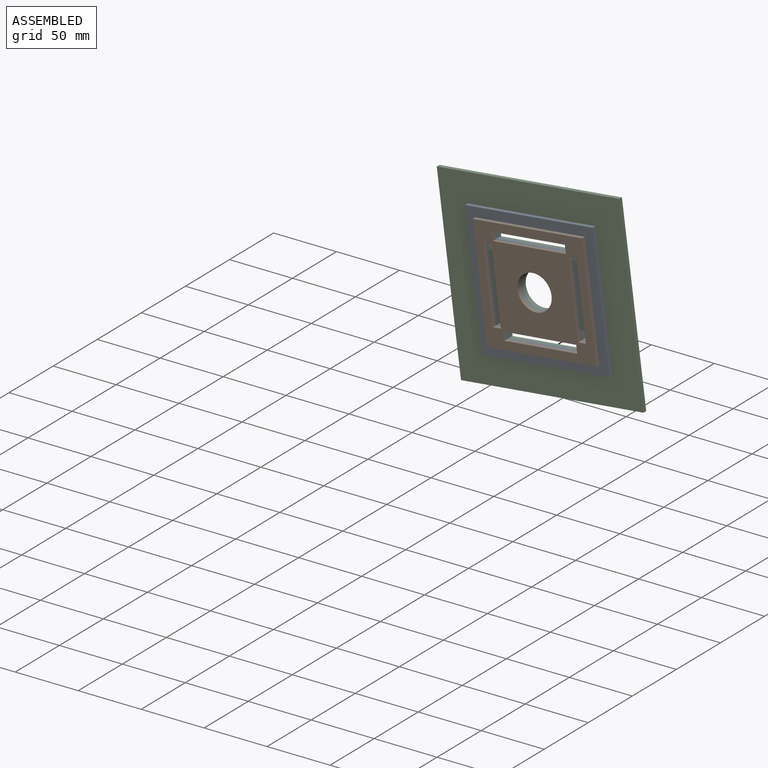
[diagram: assembled view]
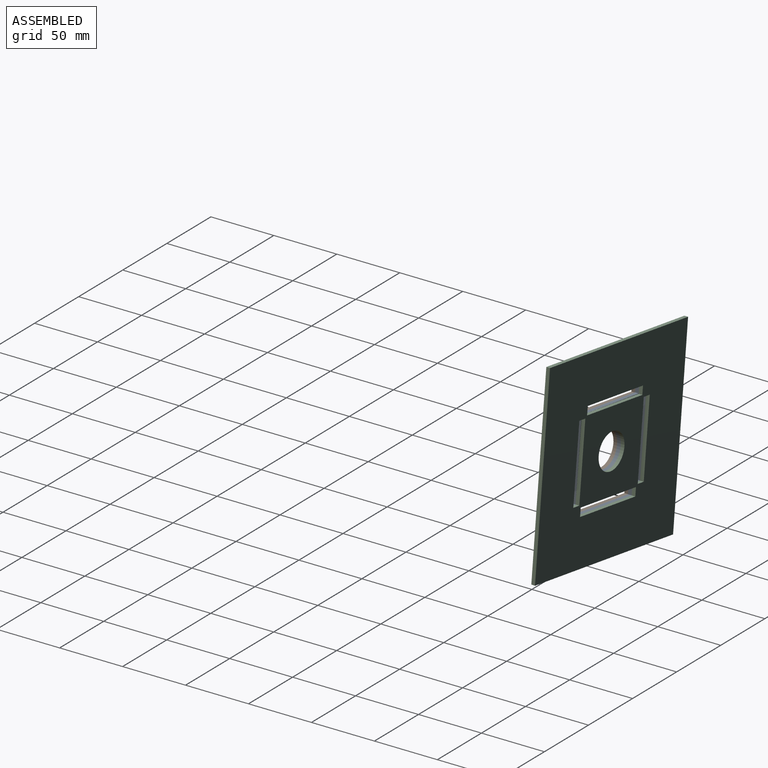
[diagram: assembled view, second angle]
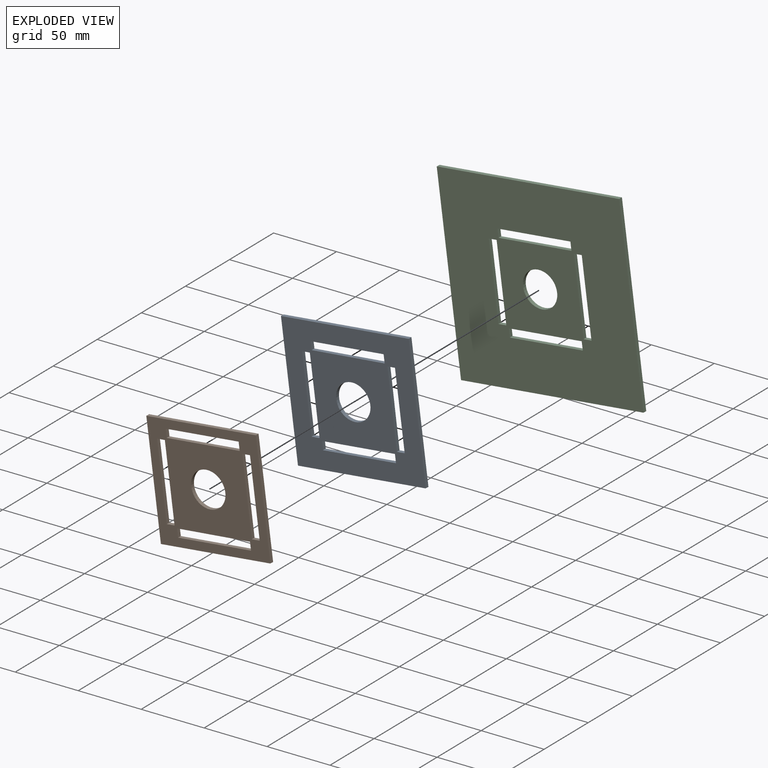
[diagram: exploded view]
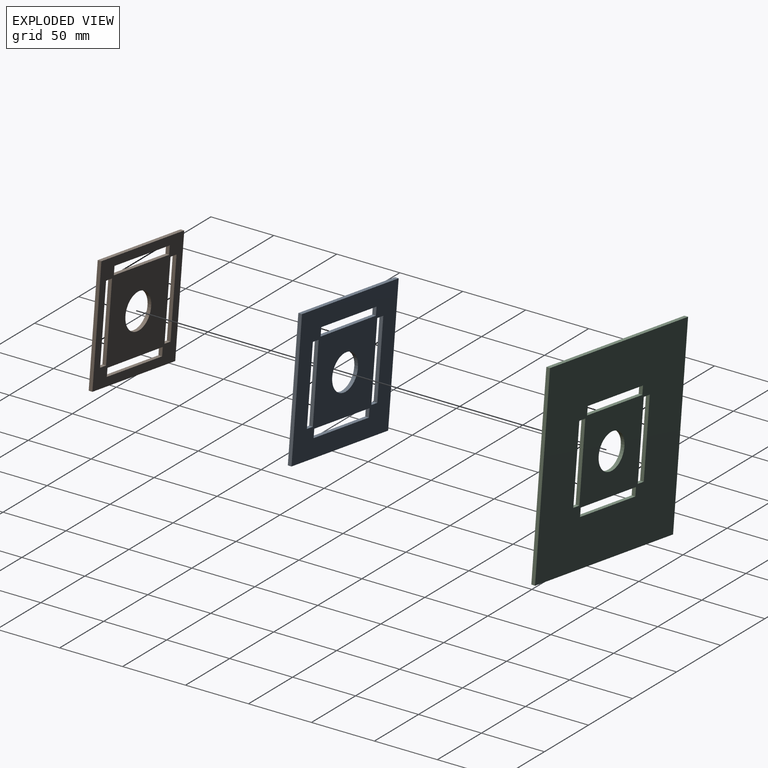
[diagram: exploded view, second angle]
ASSEMBLY  parts=3 mates=2
PART A: 23 faces, bbox 105x3x105 mm
  f0: plane 105x3mm, normal (0,0,-1), area 315mm2, adj f1,f20,f21,f22
  f1: plane 105x3mm, normal (1,0,0), area 315mm2, adj f0,f2,f21,f22
  f2: plane 105x3mm, normal (0,0,1), area 315mm2, adj f1,f20,f21,f22
  f3: plane 60x3mm, normal (-1,0,0), area 180mm2, adj f4,f15,f21,f22
  f4: plane 6.5x3mm, normal (0,0,1), area 19.5mm2, adj f3,f5,f21,f22
  f5: plane 60x3mm, normal (1,0,0), area 180mm2, adj f4,f15,f21,f22
  f6: plane 60x3mm, normal (0,0,-1), area 180mm2, adj f7,f16,f21,f22
  f7: plane 6.5x3mm, normal (-1,0,0), area 19.5mm2, adj f6,f8,f21,f22
  f8: plane 60x3mm, normal (0,0,1), area 180mm2, adj f7,f16,f21,f22
  f9: plane 60x3mm, normal (-1,0,0), area 180mm2, adj f10,f18,f21,f22
  f10: plane 6.5x3mm, normal (0,0,1), area 19.5mm2, adj f9,f11,f21,f22
  f11: plane 60x3mm, normal (1,0,0), area 180mm2, adj f10,f18,f21,f22
  f12: plane 6.5x3mm, normal (1,0,0), area 19.5mm2, adj f13,f19,f21,f22
  f13: plane 60x3mm, normal (0,0,-1), area 180mm2, adj f12,f14,f21,f22
  f14: plane 6.5x3mm, normal (-1,0,0), area 19.5mm2, adj f13,f19,f21,f22
  f15: plane 6.25x3mm, normal (0,0,-1), area 18.8mm2, adj f3,f5,f21,f22
  f16: plane 6.25x3mm, normal (1,0,0), area 18.8mm2, adj f6,f8,f21,f22
  f17: cylinder r=14mm len=28mm, axis (0,1,0), area 263.9mm2, adj f21,f22
  f18: plane 6.5x3mm, normal (0,0,-1), area 19.5mm2, adj f9,f11,f21,f22
  f19: plane 60x3mm, normal (0,0,1), area 180mm2, adj f12,f14,f21,f22
  f20: plane 105x3mm, normal (-1,0,0), area 315mm2, adj f0,f2,f21,f22
  f21: plane 105x105mm, normal (0,-1,0), area 8864.2mm2, adj f0,f1,f2,f3,f4,f5,f6,f7
  f22: plane 105x105mm, normal (0,1,0), area 8864.2mm2, adj f0,f1,f2,f3,f4,f5,f6,f7
PART B: 23 faces, bbox 90x3x90 mm
  f0: plane 60x3mm, normal (0,0,1), area 180mm2, adj f1,f20,f21,f22
  f1: plane 6.5x3mm, normal (1,0,0), area 19.5mm2, adj f0,f2,f21,f22
  f2: plane 60x3mm, normal (0,0,-1), area 180mm2, adj f1,f20,f21,f22
  f3: plane 6.5x3mm, normal (0,0,-1), area 19.5mm2, adj f4,f15,f21,f22
  f4: plane 60x3mm, normal (-1,0,0), area 180mm2, adj f3,f5,f21,f22
  f5: plane 6.5x3mm, normal (0,0,1), area 19.5mm2, adj f4,f15,f21,f22
  f6: plane 60x3mm, normal (1,0,0), area 180mm2, adj f7,f17,f21,f22
  f7: plane 6.5x3mm, normal (0,0,-1), area 19.5mm2, adj f6,f8,f21,f22
  f8: plane 60x3mm, normal (-1,0,0), area 180mm2, adj f7,f17,f21,f22
  f9: plane 60x3mm, normal (0,0,1), area 180mm2, adj f10,f18,f21,f22
  f10: plane 6.5x3mm, normal (1,0,0), area 19.5mm2, adj f9,f11,f21,f22
  f11: plane 60x3mm, normal (0,0,-1), area 180mm2, adj f10,f18,f21,f22
  f12: plane 90x3mm, normal (0,0,1), area 270mm2, adj f13,f19,f21,f22
  f13: plane 90x3mm, normal (-1,0,0), area 270mm2, adj f12,f14,f21,f22
  f14: plane 90x3mm, normal (0,0,-1), area 270mm2, adj f13,f19,f21,f22
  f15: plane 60x3mm, normal (1,0,0), area 180mm2, adj f3,f5,f21,f22
  f16: cylinder r=14mm len=28mm, axis (0,1,0), area 263.9mm2, adj f21,f22
  f17: plane 6.5x3mm, normal (0,0,1), area 19.5mm2, adj f6,f8,f21,f22
  f18: plane 6.25x3mm, normal (-1,0,0), area 18.8mm2, adj f9,f11,f21,f22
  f19: plane 90x3mm, normal (1,0,0), area 270mm2, adj f12,f14,f21,f22
  f20: plane 6.5x3mm, normal (-1,0,0), area 19.5mm2, adj f0,f2,f21,f22
  f21: plane 90x90mm, normal (0,-1,0), area 5931.7mm2, adj f0,f1,f2,f3,f4,f5,f6,f7
  f22: plane 90x90mm, normal (0,1,0), area 5931.7mm2, adj f0,f1,f2,f3,f4,f5,f6,f7
PART C: 23 faces, bbox 150x3x150 mm
  f0: plane 150x3mm, normal (1,0,0), area 450mm2, adj f1,f20,f21,f22
  f1: plane 150x3mm, normal (0,0,1), area 450mm2, adj f0,f2,f21,f22
  f2: plane 150x3mm, normal (-1,0,0), area 450mm2, adj f1,f20,f21,f22
  f3: plane 6.5x3mm, normal (0,0,-1), area 19.5mm2, adj f4,f15,f21,f22
  f4: plane 60x3mm, normal (-1,0,0), area 180mm2, adj f3,f5,f21,f22
  f5: plane 6.5x3mm, normal (0,0,1), area 19.5mm2, adj f4,f15,f21,f22
  f6: plane 6.5x3mm, normal (1,0,0), area 19.5mm2, adj f7,f16,f21,f22
  f7: plane 60x3mm, normal (0,0,-1), area 180mm2, adj f6,f8,f21,f22
  f8: plane 6.5x3mm, normal (-1,0,0), area 19.5mm2, adj f7,f16,f21,f22
  f9: plane 60x3mm, normal (0,0,1), area 180mm2, adj f10,f18,f21,f22
  f10: plane 6.5x3mm, normal (1,0,0), area 19.5mm2, adj f9,f11,f21,f22
  f11: plane 60x3mm, normal (0,0,-1), area 180mm2, adj f10,f18,f21,f22
  f12: plane 60x3mm, normal (1,0,0), area 180mm2, adj f13,f19,f21,f22
  f13: plane 6.5x3mm, normal (0,0,-1), area 19.5mm2, adj f12,f14,f21,f22
  f14: plane 60x3mm, normal (-1,0,0), area 180mm2, adj f13,f19,f21,f22
  f15: plane 60x3mm, normal (1,0,0), area 180mm2, adj f3,f5,f21,f22
  f16: plane 60x3mm, normal (0,0,1), area 180mm2, adj f6,f8,f21,f22
  f17: cylinder r=14mm len=28mm, axis (0,1,0), area 263.9mm2, adj f21,f22
  f18: plane 6.5x3mm, normal (-1,0,0), area 19.5mm2, adj f9,f11,f21,f22
  f19: plane 6.5x3mm, normal (0,0,1), area 19.5mm2, adj f12,f14,f21,f22
  f20: plane 150x3mm, normal (0,0,-1), area 450mm2, adj f0,f2,f21,f22
  f21: plane 150x150mm, normal (0,-1,0), area 20324.2mm2, adj f0,f1,f2,f3,f4,f5,f6,f7
  f22: plane 150x150mm, normal (0,1,0), area 20324.2mm2, adj f0,f1,f2,f3,f4,f5,f6,f7
PLACE A rot(axis=(0.07,-0.96,-0.28),7.4deg) t=(-100.69,-75.11,-43.79)mm
PLACE B rot(axis=(0.07,-0.96,-0.28),7.4deg) t=(-100.8,-78.11,-43.82)mm
PLACE C rot(axis=(0.07,-0.96,-0.28),7.4deg) t=(-100.58,-72.11,-43.75)mm
MATE fastened B.f16 <-> A.f17  axis (0.04,1,0.01) through (-100.8,-78.11,-43.82)mm
MATE fastened C.f17 <-> A.f17  axis (-0.04,-1,-0.01) through (-100.69,-75.11,-43.79)mm
